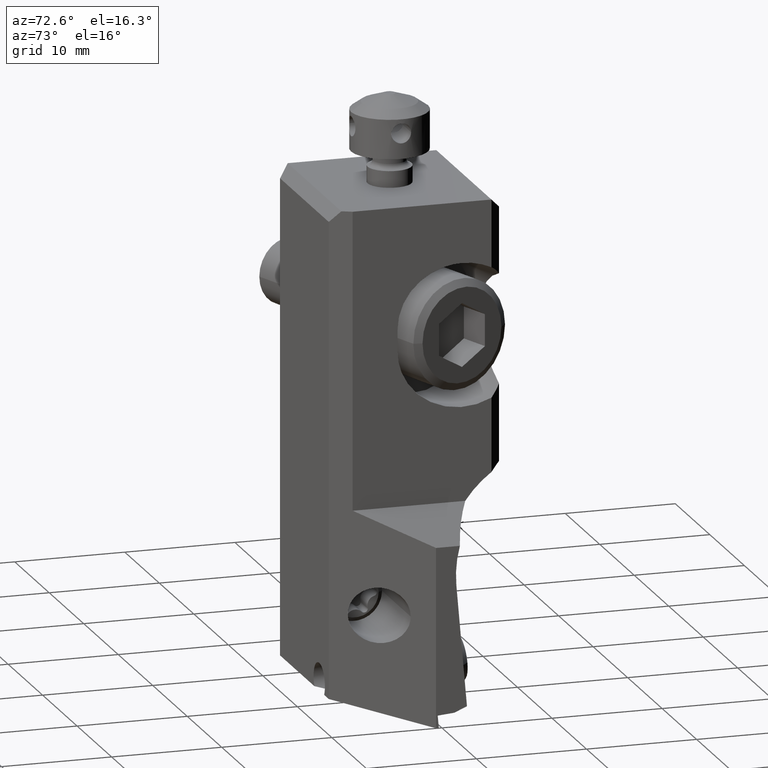
[diagram: clean part render]
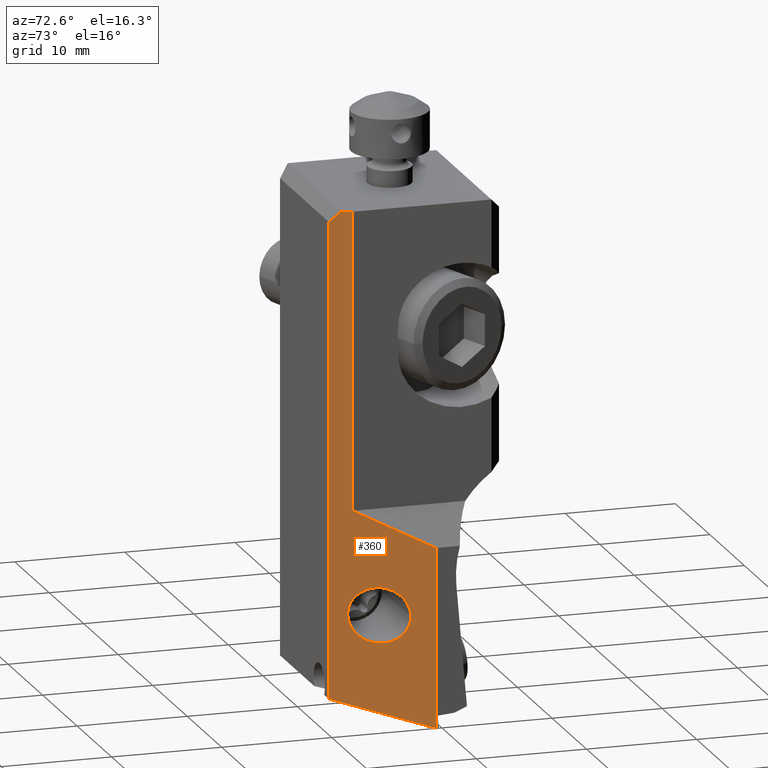
[diagram: same view with one face highlighted and labeled with its STEP entity id]
A machine part, auxiliary view. The second image highlights one B-rep face of the part: STEP entity #360.
In plain terms, the highlighted planar face has unit normal (0.9063, -0.4226, 0).
Its self-contained STEP definition (entity closure, byte-faithful):
#133=FACE_BOUND('',#678,.T.);
#134=FACE_BOUND('',#679,.T.);
#360=ADVANCED_FACE('',(#133,#134),#499,.T.);
#499=PLANE('',#2669);
#678=EDGE_LOOP('',(#1202,#1203,#1204,#1205,#1206,#1207,#1208));
#679=EDGE_LOOP('',(#1209,#1210));
#830=LINE('',#3784,#1004);
#839=LINE('',#3811,#1013);
#840=LINE('',#3813,#1014);
#841=LINE('',#3815,#1015);
#842=LINE('',#3817,#1016);
#843=LINE('',#3819,#1017);
#844=LINE('',#3821,#1018);
#1004=VECTOR('',#2996,1.);
#1013=VECTOR('',#3021,1.);
#1014=VECTOR('',#3024,1.);
#1015=VECTOR('',#3025,1.);
#1016=VECTOR('',#3026,1.);
#1017=VECTOR('',#3027,1.);
#1018=VECTOR('',#3028,1.);
#1202=ORIENTED_EDGE('',*,*,#2158,.F.);
#1203=ORIENTED_EDGE('',*,*,#2172,.F.);
#1204=ORIENTED_EDGE('',*,*,#2173,.T.);
#1205=ORIENTED_EDGE('',*,*,#2174,.T.);
#1206=ORIENTED_EDGE('',*,*,#2175,.T.);
#1207=ORIENTED_EDGE('',*,*,#2176,.T.);
#1208=ORIENTED_EDGE('',*,*,#2177,.T.);
#1209=ORIENTED_EDGE('',*,*,#2178,.F.);
#1210=ORIENTED_EDGE('',*,*,#2179,.F.);
#1919=VERTEX_POINT('',#3783);
#1920=VERTEX_POINT('',#3785);
#1929=VERTEX_POINT('',#3810);
#1930=VERTEX_POINT('',#3814);
#1931=VERTEX_POINT('',#3816);
#1932=VERTEX_POINT('',#3818);
#1933=VERTEX_POINT('',#3820);
#1934=VERTEX_POINT('',#3823);
#1935=VERTEX_POINT('',#3824);
#2158=EDGE_CURVE('',#1919,#1920,#830,.T.);
#2172=EDGE_CURVE('',#1929,#1919,#839,.T.);
#2173=EDGE_CURVE('',#1929,#1930,#840,.T.);
#2174=EDGE_CURVE('',#1930,#1931,#841,.T.);
#2175=EDGE_CURVE('',#1931,#1932,#842,.T.);
#2176=EDGE_CURVE('',#1932,#1933,#843,.T.);
#2177=EDGE_CURVE('',#1933,#1920,#844,.T.);
#2178=EDGE_CURVE('',#1934,#1935,#2530,.T.);
#2179=EDGE_CURVE('',#1935,#1934,#2531,.T.);
#2530=ELLIPSE('',#2667,2.7584447974062,2.5);
#2531=ELLIPSE('',#2668,2.7584447974062,2.5);
#2667=AXIS2_PLACEMENT_3D('',#3822,#3029,#3030);
#2668=AXIS2_PLACEMENT_3D('',#3825,#3031,#3032);
#2669=AXIS2_PLACEMENT_3D('',#3826,#3033,#3034);
#2996=DIRECTION('',(0.,0.,1.));
#3021=DIRECTION('',(-0.410682057589813,-0.880710514630528,0.235985671160408));
#3024=DIRECTION('',(0.,2.640266409077E-14,1.));
#3025=DIRECTION('',(-0.389281620635004,-0.834817129479008,0.389281620635004));
#3026=DIRECTION('',(0.,0.,1.));
#3027=DIRECTION('',(-0.422618261740599,-0.906307787036697,0.));
#3028=DIRECTION('',(-0.313145613015005,-0.671542934237811,-0.671542934237811));
#3029=DIRECTION('',(0.906307787036659,-0.422618261740681,0.));
#3030=DIRECTION('',(0.422618261740681,0.906307787036659,0.));
#3031=DIRECTION('',(0.906307787036659,-0.422618261740681,0.));
#3032=DIRECTION('',(0.422618261740681,0.906307787036659,0.));
#3033=DIRECTION('',(0.906307787036659,-0.422618261740681,0.));
#3034=DIRECTION('',(0.422618261740681,0.906307787036659,0.));
#3783=CARTESIAN_POINT('',(-0.8836150943175,-2.759274290535E-13,-44.08405987191));
#3784=CARTESIAN_POINT('',(-0.8836150943175,-2.759274290535E-13,-44.08405987191));
#3785=CARTESIAN_POINT('',(-0.8836150943175,0.,-1.));
#3810=CARTESIAN_POINT('',(3.08,8.5,-46.36162800757));
#3811=CARTESIAN_POINT('',(3.08,8.5,-46.36162800757));
#3813=CARTESIAN_POINT('',(3.08,8.5,-46.36162800757));
#3814=CARTESIAN_POINT('',(3.08,8.5,-30.08));
#3815=CARTESIAN_POINT('',(3.08,8.5,-30.08));
#3816=CARTESIAN_POINT('',(4.174438572591E-14,1.894918684831,-27.));
#3817=CARTESIAN_POINT('',(4.16703708576E-14,1.894918684831,-27.));
#3818=CARTESIAN_POINT('',(4.233650467237E-14,1.894918684831,0.));
#3819=CARTESIAN_POINT('',(4.233650467237E-14,1.894918684831,0.));
#3820=CARTESIAN_POINT('',(-0.4173074361625,1.,0.));
#3821=CARTESIAN_POINT('',(-0.4173074361625,1.,0.));
#3822=CARTESIAN_POINT('',(0.981615538302255,4.,-36.36162800757));
#3823=CARTESIAN_POINT('',(-0.184153607085089,1.5,-36.36162800757));
#3824=CARTESIAN_POINT('',(2.14738468368985,6.5,-36.36162800757));
#3825=CARTESIAN_POINT('',(0.981615538302255,4.,-36.36162800757));
#3826=CARTESIAN_POINT('',(1.098192452841,4.25,-23.18081400378));